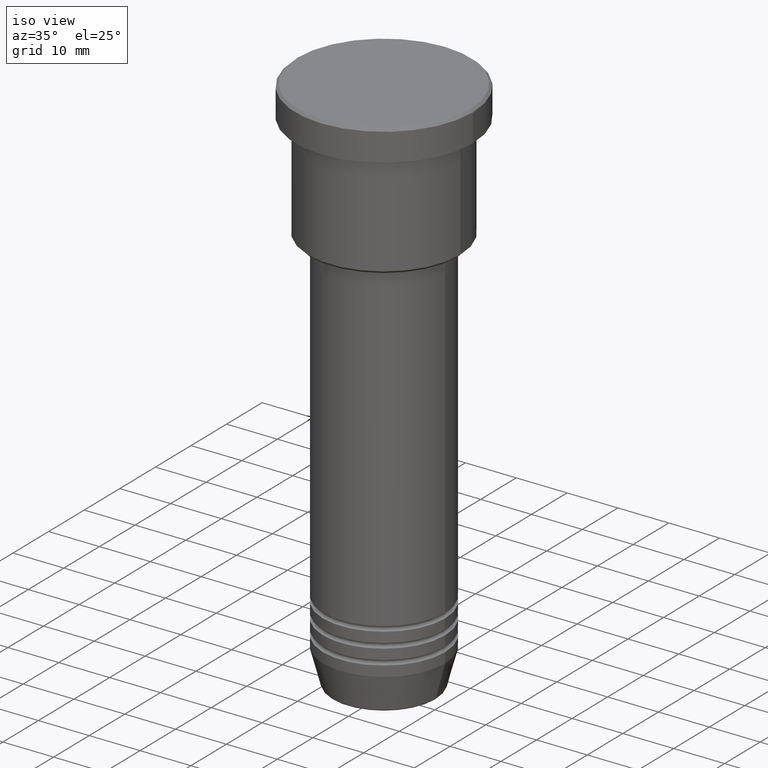
[diagram: clean part render]
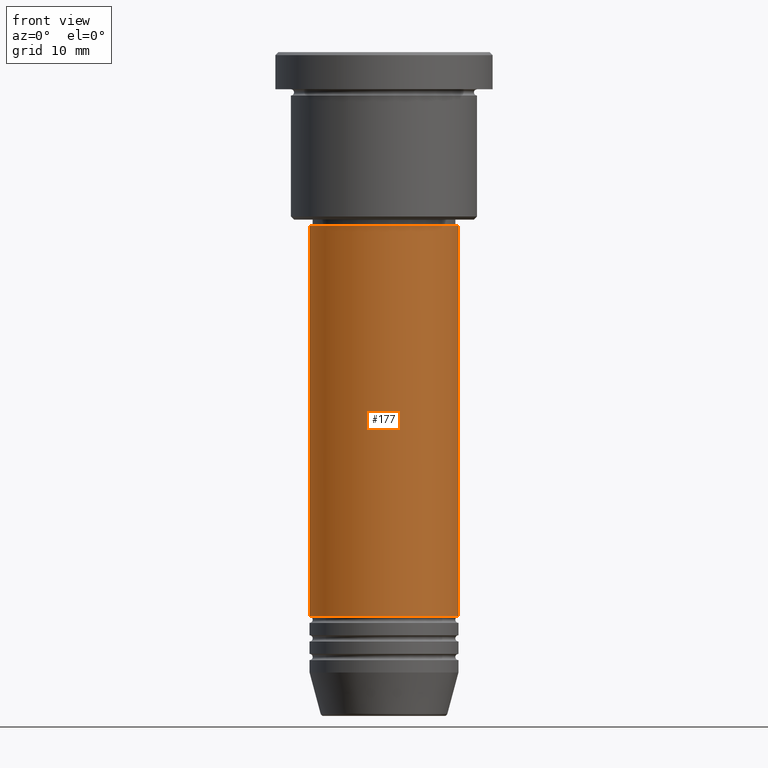
[diagram: tour spotlight — one face highlighted and labeled with its STEP entity id]
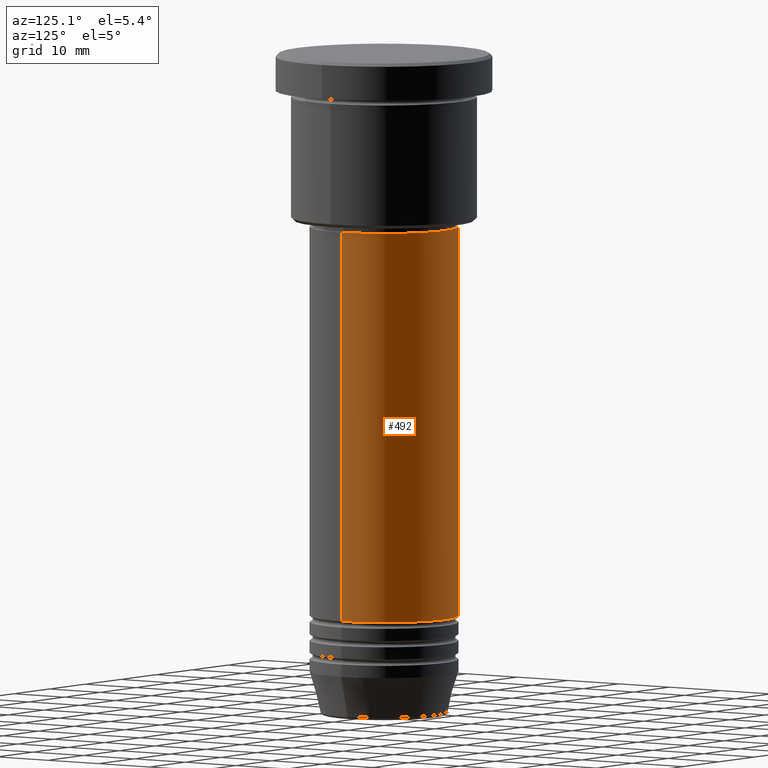
[diagram: tour spotlight — one face highlighted and labeled with its STEP entity id]
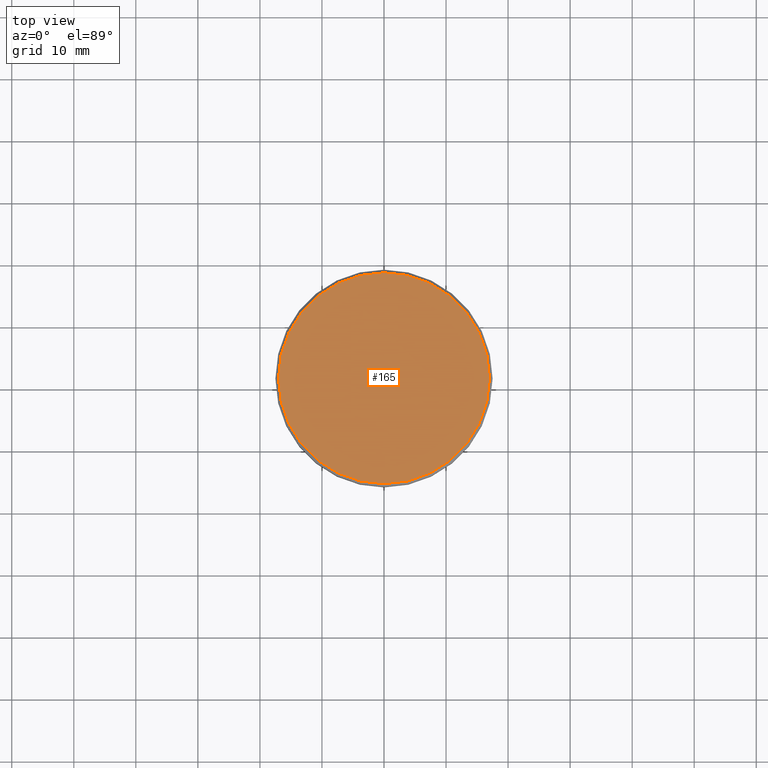
[diagram: tour spotlight — one face highlighted and labeled with its STEP entity id]
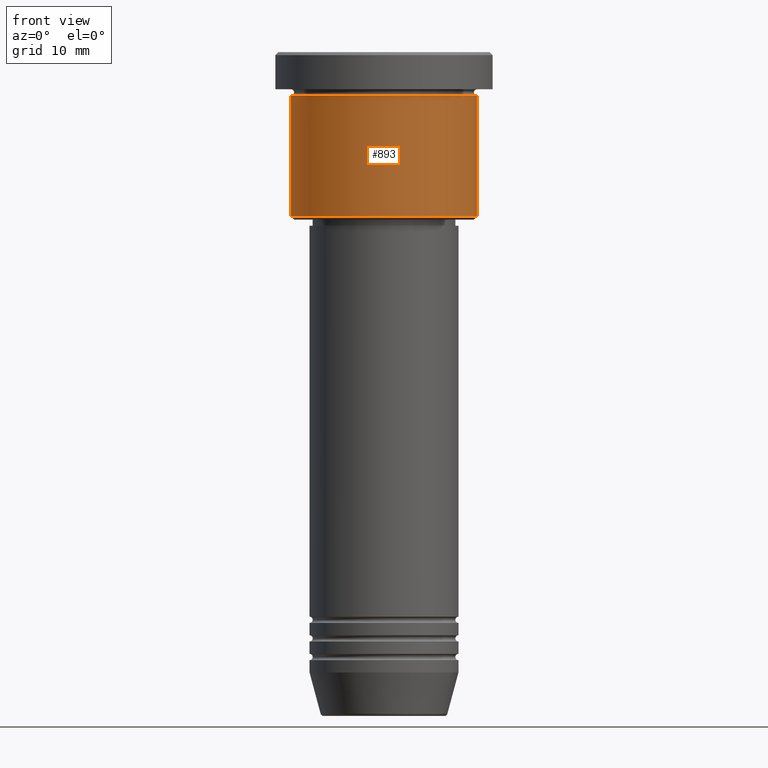
[diagram: tour spotlight — one face highlighted and labeled with its STEP entity id]
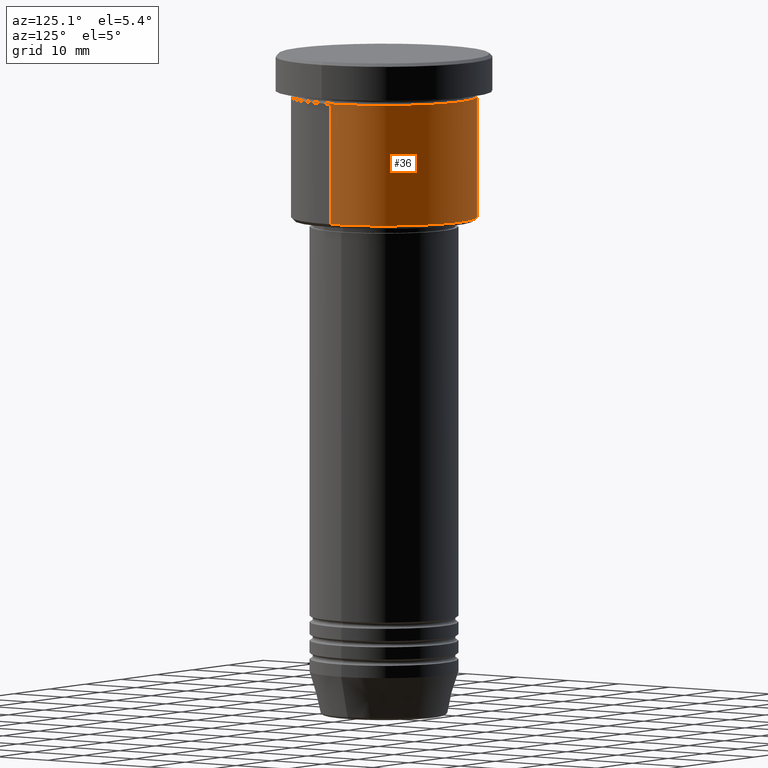
[diagram: tour spotlight — one face highlighted and labeled with its STEP entity id]
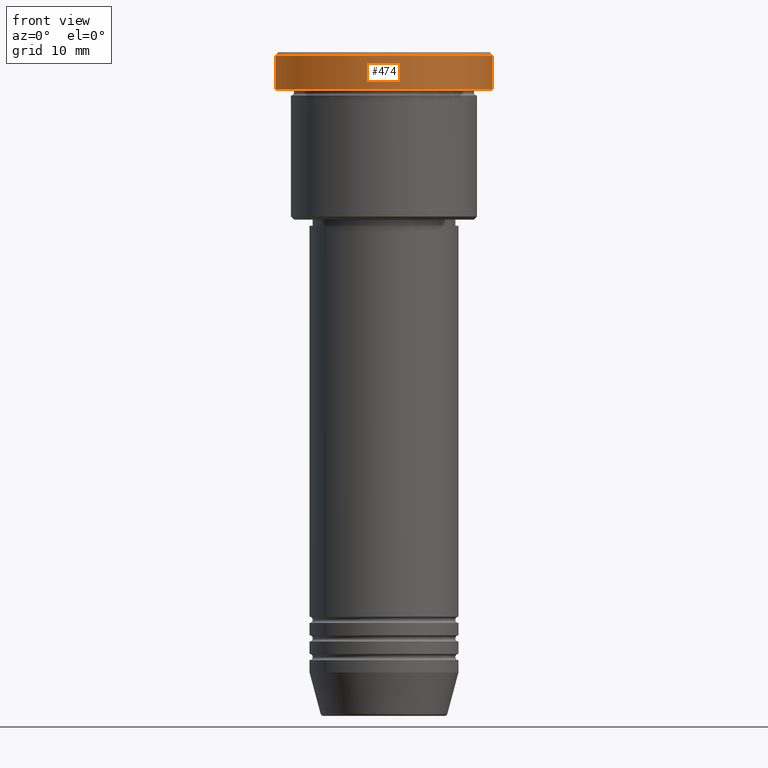
[diagram: tour spotlight — one face highlighted and labeled with its STEP entity id]
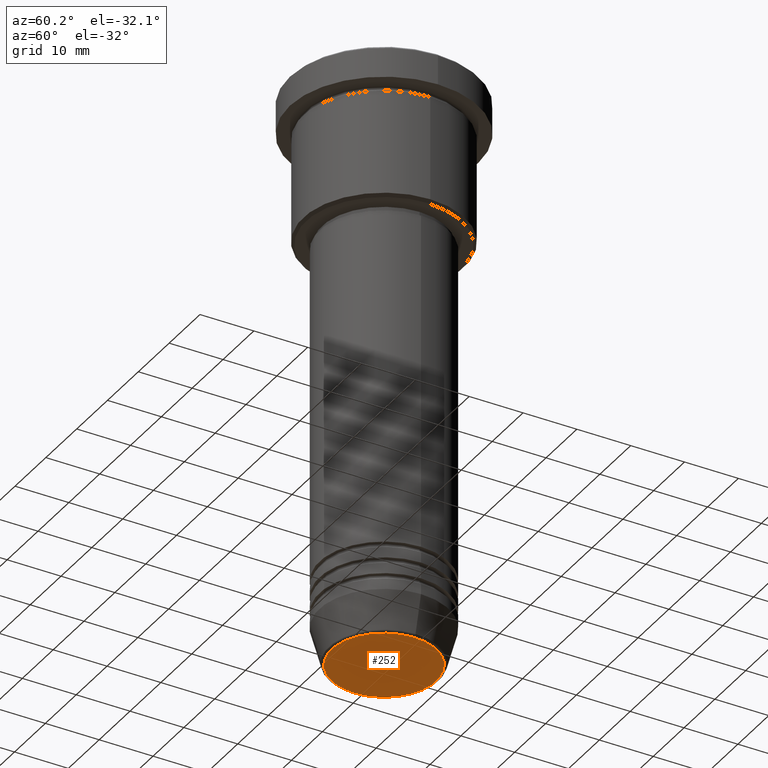
[diagram: tour spotlight — one face highlighted and labeled with its STEP entity id]
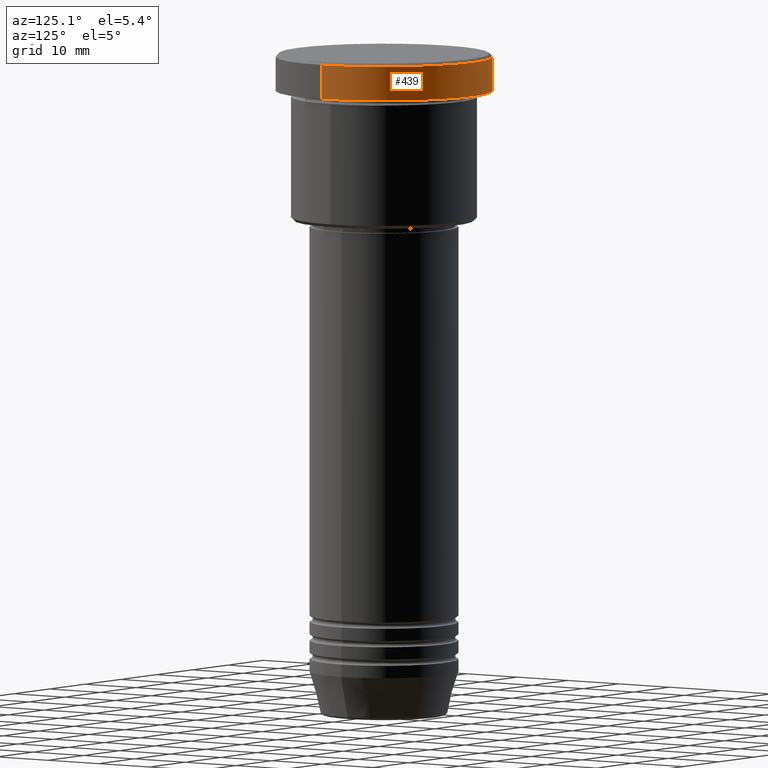
[diagram: tour spotlight — one face highlighted and labeled with its STEP entity id]
A machine part: a face-by-face anatomy tour. The part has 43 B-rep faces; the first image is the clean iso view, then the 8 largest visible faces are spotlighted one at a time (largest first), each with its STEP entity span.

Face 1 — front view, entity #177. In plain terms, the highlighted cylindrical surface (partial cylindrical patch) has radius 12 mm, axis along (-0, -0, 1).
Definition (entity closure, byte-faithful):
#21 = AXIS2_PLACEMENT_3D ( 'NONE', #513, #866, #840 ) ;
#30 = EDGE_CURVE ( 'NONE', #206, #619, #933, .T. ) ;
#34 = VERTEX_POINT ( 'NONE', #942 ) ;
#62 = EDGE_CURVE ( 'NONE', #290, #619, #374, .T. ) ;
#77 = ORIENTED_EDGE ( 'NONE', *, *, #982, .T. ) ;
#82 = CARTESIAN_POINT ( 'NONE',  ( 0.000000000000000000, 0.000000000000000000, -90.99999999999997158 ) ) ;
#91 = DIRECTION ( 'NONE',  ( -0.000000000000000000, -0.000000000000000000, 1.000000000000000000 ) ) ;
#104 = ORIENTED_EDGE ( 'NONE', *, *, #1085, .F. ) ;
#114 = DIRECTION ( 'NONE',  ( 1.000000000000000000, 0.000000000000000000, 0.000000000000000000 ) ) ;
#118 = CYLINDRICAL_SURFACE ( 'NONE', #281, 12.00000000000000000 ) ;
#168 = VECTOR ( 'NONE', #584, 1000.000000000000000 ) ;
#177 = ADVANCED_FACE ( 'NONE', ( #929 ), #118, .T. ) ;
#204 = CARTESIAN_POINT ( 'NONE',  ( 0.000000000000000000, 0.000000000000000000, 0.000000000000000000 ) ) ;
#206 = VERTEX_POINT ( 'NONE', #212 ) ;
#212 = CARTESIAN_POINT ( 'NONE',  ( 12.00000000000000000, 0.000000000000000000, -90.99999999999997158 ) ) ;
#249 = CIRCLE ( 'NONE', #357, 12.00000000000000000 ) ;
#281 = AXIS2_PLACEMENT_3D ( 'NONE', #204, #482, #114 ) ;
#290 = VERTEX_POINT ( 'NONE', #589 ) ;
#306 = LINE ( 'NONE', #828, #646 ) ;
#357 = AXIS2_PLACEMENT_3D ( 'NONE', #82, #91, #1080 ) ;
#364 = EDGE_LOOP ( 'NONE', ( #104, #77, #1095, #391 ) ) ;
#374 = CIRCLE ( 'NONE', #21, 12.00000000000000000 ) ;
#391 = ORIENTED_EDGE ( 'NONE', *, *, #62, .F. ) ;
#482 = DIRECTION ( 'NONE',  ( -0.000000000000000000, -0.000000000000000000, 1.000000000000000000 ) ) ;
#484 = DIRECTION ( 'NONE',  ( -0.000000000000000000, -0.000000000000000000, 1.000000000000000000 ) ) ;
#513 = CARTESIAN_POINT ( 'NONE',  ( 0.000000000000000000, 0.000000000000000000, -28.00000000000000355 ) ) ;
#584 = DIRECTION ( 'NONE',  ( -0.000000000000000000, -0.000000000000000000, 1.000000000000000000 ) ) ;
#589 = CARTESIAN_POINT ( 'NONE',  ( -12.00000000000000000, 1.469576158976823947E-15, -28.00000000000000355 ) ) ;
#619 = VERTEX_POINT ( 'NONE', #1094 ) ;
#646 = VECTOR ( 'NONE', #484, 1000.000000000000000 ) ;
#828 = CARTESIAN_POINT ( 'NONE',  ( -12.00000000000000000, 1.469576158976823947E-15, 0.000000000000000000 ) ) ;
#840 = DIRECTION ( 'NONE',  ( 1.000000000000000000, 0.000000000000000000, 0.000000000000000000 ) ) ;
#845 = CARTESIAN_POINT ( 'NONE',  ( 12.00000000000000000, 0.000000000000000000, 0.000000000000000000 ) ) ;
#866 = DIRECTION ( 'NONE',  ( -0.000000000000000000, -0.000000000000000000, 1.000000000000000000 ) ) ;
#929 = FACE_OUTER_BOUND ( 'NONE', #364, .T. ) ;
#933 = LINE ( 'NONE', #845, #168 ) ;
#942 = CARTESIAN_POINT ( 'NONE',  ( -12.00000000000000000, 1.469576158976823947E-15, -90.99999999999997158 ) ) ;
#982 = EDGE_CURVE ( 'NONE', #34, #206, #249, .T. ) ;
#1080 = DIRECTION ( 'NONE',  ( 1.000000000000000000, 0.000000000000000000, 0.000000000000000000 ) ) ;
#1085 = EDGE_CURVE ( 'NONE', #34, #290, #306, .T. ) ;
#1094 = CARTESIAN_POINT ( 'NONE',  ( 12.00000000000000000, 0.000000000000000000, -28.00000000000000355 ) ) ;
#1095 = ORIENTED_EDGE ( 'NONE', *, *, #30, .T. ) ;

Face 2 — auxiliary view, entity #492. In plain terms, the highlighted cylindrical surface (partial cylindrical patch) has radius 12 mm, axis along (-0, -0, 1).
Definition (entity closure, byte-faithful):
#30 = EDGE_CURVE ( 'NONE', #206, #619, #933, .T. ) ;
#34 = VERTEX_POINT ( 'NONE', #942 ) ;
#42 = AXIS2_PLACEMENT_3D ( 'NONE', #631, #878, #1087 ) ;
#58 = CARTESIAN_POINT ( 'NONE',  ( 0.000000000000000000, 0.000000000000000000, -28.00000000000000355 ) ) ;
#110 = EDGE_CURVE ( 'NONE', #206, #34, #839, .T. ) ;
#168 = VECTOR ( 'NONE', #584, 1000.000000000000000 ) ;
#181 = FACE_OUTER_BOUND ( 'NONE', #384, .T. ) ;
#206 = VERTEX_POINT ( 'NONE', #212 ) ;
#212 = CARTESIAN_POINT ( 'NONE',  ( 12.00000000000000000, 0.000000000000000000, -90.99999999999997158 ) ) ;
#276 = CYLINDRICAL_SURFACE ( 'NONE', #997, 12.00000000000000000 ) ;
#290 = VERTEX_POINT ( 'NONE', #589 ) ;
#306 = LINE ( 'NONE', #828, #646 ) ;
#317 = EDGE_CURVE ( 'NONE', #619, #290, #706, .T. ) ;
#384 = EDGE_LOOP ( 'NONE', ( #1125, #1171, #654, #505 ) ) ;
#392 = AXIS2_PLACEMENT_3D ( 'NONE', #58, #797, #429 ) ;
#429 = DIRECTION ( 'NONE',  ( 1.000000000000000000, 0.000000000000000000, 0.000000000000000000 ) ) ;
#454 = DIRECTION ( 'NONE',  ( 1.000000000000000000, 0.000000000000000000, 0.000000000000000000 ) ) ;
#484 = DIRECTION ( 'NONE',  ( -0.000000000000000000, -0.000000000000000000, 1.000000000000000000 ) ) ;
#492 = ADVANCED_FACE ( 'NONE', ( #181 ), #276, .T. ) ;
#505 = ORIENTED_EDGE ( 'NONE', *, *, #30, .F. ) ;
#584 = DIRECTION ( 'NONE',  ( -0.000000000000000000, -0.000000000000000000, 1.000000000000000000 ) ) ;
#589 = CARTESIAN_POINT ( 'NONE',  ( -12.00000000000000000, 1.469576158976823947E-15, -28.00000000000000355 ) ) ;
#619 = VERTEX_POINT ( 'NONE', #1094 ) ;
#631 = CARTESIAN_POINT ( 'NONE',  ( 0.000000000000000000, 0.000000000000000000, -90.99999999999997158 ) ) ;
#646 = VECTOR ( 'NONE', #484, 1000.000000000000000 ) ;
#654 = ORIENTED_EDGE ( 'NONE', *, *, #317, .F. ) ;
#706 = CIRCLE ( 'NONE', #392, 12.00000000000000000 ) ;
#745 = CARTESIAN_POINT ( 'NONE',  ( 0.000000000000000000, 0.000000000000000000, 0.000000000000000000 ) ) ;
#797 = DIRECTION ( 'NONE',  ( -0.000000000000000000, -0.000000000000000000, 1.000000000000000000 ) ) ;
#828 = CARTESIAN_POINT ( 'NONE',  ( -12.00000000000000000, 1.469576158976823947E-15, 0.000000000000000000 ) ) ;
#839 = CIRCLE ( 'NONE', #42, 12.00000000000000000 ) ;
#845 = CARTESIAN_POINT ( 'NONE',  ( 12.00000000000000000, 0.000000000000000000, 0.000000000000000000 ) ) ;
#878 = DIRECTION ( 'NONE',  ( -0.000000000000000000, -0.000000000000000000, 1.000000000000000000 ) ) ;
#933 = LINE ( 'NONE', #845, #168 ) ;
#942 = CARTESIAN_POINT ( 'NONE',  ( -12.00000000000000000, 1.469576158976823947E-15, -90.99999999999997158 ) ) ;
#995 = DIRECTION ( 'NONE',  ( -0.000000000000000000, -0.000000000000000000, 1.000000000000000000 ) ) ;
#997 = AXIS2_PLACEMENT_3D ( 'NONE', #745, #995, #454 ) ;
#1085 = EDGE_CURVE ( 'NONE', #34, #290, #306, .T. ) ;
#1087 = DIRECTION ( 'NONE',  ( 1.000000000000000000, 0.000000000000000000, 0.000000000000000000 ) ) ;
#1094 = CARTESIAN_POINT ( 'NONE',  ( 12.00000000000000000, 0.000000000000000000, -28.00000000000000355 ) ) ;
#1125 = ORIENTED_EDGE ( 'NONE', *, *, #110, .T. ) ;
#1171 = ORIENTED_EDGE ( 'NONE', *, *, #1085, .T. ) ;

Face 3 — top view, entity #165. In plain terms, the highlighted planar face has unit normal (0, -0, 1).
Definition (entity closure, byte-faithful):
#8 = ORIENTED_EDGE ( 'NONE', *, *, #350, .T. ) ;
#70 = CARTESIAN_POINT ( 'NONE',  ( 0.000000000000000000, 0.000000000000000000, 0.000000000000000000 ) ) ;
#143 = EDGE_CURVE ( 'NONE', #495, #423, #261, .T. ) ;
#165 = ADVANCED_FACE ( 'NONE', ( #676 ), #689, .T. ) ;
#224 = ORIENTED_EDGE ( 'NONE', *, *, #143, .T. ) ;
#234 = CARTESIAN_POINT ( 'NONE',  ( 0.000000000000000000, 0.000000000000000000, 0.000000000000000000 ) ) ;
#245 = DIRECTION ( 'NONE',  ( 1.000000000000000000, 0.000000000000000000, 0.000000000000000000 ) ) ;
#261 = CIRCLE ( 'NONE', #527, 17.00000000000000000 ) ;
#274 = DIRECTION ( 'NONE',  ( 0.000000000000000000, -0.000000000000000000, 1.000000000000000000 ) ) ;
#350 = EDGE_CURVE ( 'NONE', #423, #495, #1137, .T. ) ;
#359 = EDGE_LOOP ( 'NONE', ( #224, #8 ) ) ;
#366 = DIRECTION ( 'NONE',  ( 1.000000000000000000, 0.000000000000000000, 0.000000000000000000 ) ) ;
#423 = VERTEX_POINT ( 'NONE', #956 ) ;
#495 = VERTEX_POINT ( 'NONE', #1173 ) ;
#499 = DIRECTION ( 'NONE',  ( -0.000000000000000000, -0.000000000000000000, 1.000000000000000000 ) ) ;
#527 = AXIS2_PLACEMENT_3D ( 'NONE', #234, #499, #854 ) ;
#660 = CARTESIAN_POINT ( 'NONE',  ( 0.000000000000000000, 0.000000000000000000, 0.000000000000000000 ) ) ;
#676 = FACE_OUTER_BOUND ( 'NONE', #359, .T. ) ;
#689 = PLANE ( 'NONE',  #718 ) ;
#695 = DIRECTION ( 'NONE',  ( -0.000000000000000000, -0.000000000000000000, 1.000000000000000000 ) ) ;
#718 = AXIS2_PLACEMENT_3D ( 'NONE', #660, #274, #366 ) ;
#854 = DIRECTION ( 'NONE',  ( 1.000000000000000000, 0.000000000000000000, 0.000000000000000000 ) ) ;
#938 = AXIS2_PLACEMENT_3D ( 'NONE', #70, #695, #245 ) ;
#956 = CARTESIAN_POINT ( 'NONE',  ( 17.00000000000000000, 2.112515728529184067E-15, 0.000000000000000000 ) ) ;
#1137 = CIRCLE ( 'NONE', #938, 17.00000000000000000 ) ;
#1173 = CARTESIAN_POINT ( 'NONE',  ( -17.00000000000000000, 0.000000000000000000, 0.000000000000000000 ) ) ;

Face 4 — front view, entity #893. In plain terms, the highlighted cylindrical surface (partial cylindrical patch) has radius 15 mm, axis along (-0, -0, 1).
Definition (entity closure, byte-faithful):
#48 = CARTESIAN_POINT ( 'NONE',  ( 0.000000000000000000, 0.000000000000000000, 0.000000000000000000 ) ) ;
#49 = DIRECTION ( 'NONE',  ( -0.000000000000000000, -0.000000000000000000, 1.000000000000000000 ) ) ;
#115 = LINE ( 'NONE', #847, #247 ) ;
#139 = CARTESIAN_POINT ( 'NONE',  ( 0.000000000000000000, 0.000000000000000000, -26.49999999999997158 ) ) ;
#161 = DIRECTION ( 'NONE',  ( 1.000000000000000000, 0.000000000000000000, 0.000000000000000000 ) ) ;
#169 = AXIS2_PLACEMENT_3D ( 'NONE', #253, #970, #161 ) ;
#193 = VERTEX_POINT ( 'NONE', #1123 ) ;
#247 = VECTOR ( 'NONE', #1110, 1000.000000000000000 ) ;
#250 = ORIENTED_EDGE ( 'NONE', *, *, #451, .T. ) ;
#253 = CARTESIAN_POINT ( 'NONE',  ( 0.000000000000000000, 0.000000000000000000, -6.999999999999995559 ) ) ;
#292 = ORIENTED_EDGE ( 'NONE', *, *, #728, .T. ) ;
#300 = EDGE_LOOP ( 'NONE', ( #607, #250, #292, #440 ) ) ;
#385 = DIRECTION ( 'NONE',  ( -0.000000000000000000, -0.000000000000000000, 1.000000000000000000 ) ) ;
#431 = CIRCLE ( 'NONE', #920, 15.00000000000000000 ) ;
#440 = ORIENTED_EDGE ( 'NONE', *, *, #463, .F. ) ;
#451 = EDGE_CURVE ( 'NONE', #993, #636, #431, .T. ) ;
#463 = EDGE_CURVE ( 'NONE', #1090, #193, #841, .T. ) ;
#557 = CARTESIAN_POINT ( 'NONE',  ( 15.00000000000000000, 0.000000000000000000, -26.49999999999997158 ) ) ;
#602 = CYLINDRICAL_SURFACE ( 'NONE', #740, 15.00000000000000000 ) ;
#607 = ORIENTED_EDGE ( 'NONE', *, *, #648, .F. ) ;
#636 = VERTEX_POINT ( 'NONE', #557 ) ;
#648 = EDGE_CURVE ( 'NONE', #993, #1090, #115, .T. ) ;
#728 = EDGE_CURVE ( 'NONE', #636, #193, #1113, .T. ) ;
#740 = AXIS2_PLACEMENT_3D ( 'NONE', #48, #962, #1146 ) ;
#830 = CARTESIAN_POINT ( 'NONE',  ( 15.00000000000000000, 0.000000000000000000, 0.000000000000000000 ) ) ;
#841 = CIRCLE ( 'NONE', #169, 15.00000000000000000 ) ;
#843 = CARTESIAN_POINT ( 'NONE',  ( -15.00000000000000000, 1.836970198721029589E-15, -6.999999999999995559 ) ) ;
#847 = CARTESIAN_POINT ( 'NONE',  ( -15.00000000000000000, 1.836970198721029589E-15, 0.000000000000000000 ) ) ;
#871 = FACE_OUTER_BOUND ( 'NONE', #300, .T. ) ;
#893 = ADVANCED_FACE ( 'NONE', ( #871 ), #602, .T. ) ;
#920 = AXIS2_PLACEMENT_3D ( 'NONE', #139, #49, #1152 ) ;
#962 = DIRECTION ( 'NONE',  ( -0.000000000000000000, -0.000000000000000000, 1.000000000000000000 ) ) ;
#970 = DIRECTION ( 'NONE',  ( -0.000000000000000000, -0.000000000000000000, 1.000000000000000000 ) ) ;
#985 = CARTESIAN_POINT ( 'NONE',  ( -15.00000000000000000, 1.836970198721029589E-15, -26.49999999999997158 ) ) ;
#993 = VERTEX_POINT ( 'NONE', #985 ) ;
#998 = VECTOR ( 'NONE', #385, 1000.000000000000000 ) ;
#1090 = VERTEX_POINT ( 'NONE', #843 ) ;
#1110 = DIRECTION ( 'NONE',  ( -0.000000000000000000, -0.000000000000000000, 1.000000000000000000 ) ) ;
#1113 = LINE ( 'NONE', #830, #998 ) ;
#1123 = CARTESIAN_POINT ( 'NONE',  ( 15.00000000000000000, 0.000000000000000000, -6.999999999999995559 ) ) ;
#1146 = DIRECTION ( 'NONE',  ( 1.000000000000000000, 0.000000000000000000, 0.000000000000000000 ) ) ;
#1152 = DIRECTION ( 'NONE',  ( -1.000000000000000000, 0.000000000000000000, 0.000000000000000000 ) ) ;

Face 5 — auxiliary view, entity #36. In plain terms, the highlighted cylindrical surface (partial cylindrical patch) has radius 15 mm, axis along (-0, -0, 1).
Definition (entity closure, byte-faithful):
#36 = ADVANCED_FACE ( 'NONE', ( #136 ), #749, .T. ) ;
#115 = LINE ( 'NONE', #847, #247 ) ;
#117 = ORIENTED_EDGE ( 'NONE', *, *, #696, .T. ) ;
#122 = ORIENTED_EDGE ( 'NONE', *, *, #1132, .F. ) ;
#136 = FACE_OUTER_BOUND ( 'NONE', #346, .T. ) ;
#193 = VERTEX_POINT ( 'NONE', #1123 ) ;
#222 = DIRECTION ( 'NONE',  ( -1.000000000000000000, 0.000000000000000000, 0.000000000000000000 ) ) ;
#231 = CIRCLE ( 'NONE', #941, 15.00000000000000000 ) ;
#247 = VECTOR ( 'NONE', #1110, 1000.000000000000000 ) ;
#294 = CARTESIAN_POINT ( 'NONE',  ( 0.000000000000000000, 0.000000000000000000, -26.49999999999997158 ) ) ;
#346 = EDGE_LOOP ( 'NONE', ( #117, #1009, #122, #1112 ) ) ;
#385 = DIRECTION ( 'NONE',  ( -0.000000000000000000, -0.000000000000000000, 1.000000000000000000 ) ) ;
#530 = CIRCLE ( 'NONE', #943, 15.00000000000000000 ) ;
#547 = AXIS2_PLACEMENT_3D ( 'NONE', #570, #924, #755 ) ;
#557 = CARTESIAN_POINT ( 'NONE',  ( 15.00000000000000000, 0.000000000000000000, -26.49999999999997158 ) ) ;
#570 = CARTESIAN_POINT ( 'NONE',  ( 0.000000000000000000, 0.000000000000000000, 0.000000000000000000 ) ) ;
#578 = DIRECTION ( 'NONE',  ( -0.000000000000000000, -0.000000000000000000, 1.000000000000000000 ) ) ;
#636 = VERTEX_POINT ( 'NONE', #557 ) ;
#648 = EDGE_CURVE ( 'NONE', #993, #1090, #115, .T. ) ;
#696 = EDGE_CURVE ( 'NONE', #636, #993, #231, .T. ) ;
#728 = EDGE_CURVE ( 'NONE', #636, #193, #1113, .T. ) ;
#749 = CYLINDRICAL_SURFACE ( 'NONE', #547, 15.00000000000000000 ) ;
#755 = DIRECTION ( 'NONE',  ( 1.000000000000000000, 0.000000000000000000, 0.000000000000000000 ) ) ;
#830 = CARTESIAN_POINT ( 'NONE',  ( 15.00000000000000000, 0.000000000000000000, 0.000000000000000000 ) ) ;
#834 = CARTESIAN_POINT ( 'NONE',  ( 0.000000000000000000, 0.000000000000000000, -6.999999999999995559 ) ) ;
#843 = CARTESIAN_POINT ( 'NONE',  ( -15.00000000000000000, 1.836970198721029589E-15, -6.999999999999995559 ) ) ;
#847 = CARTESIAN_POINT ( 'NONE',  ( -15.00000000000000000, 1.836970198721029589E-15, 0.000000000000000000 ) ) ;
#924 = DIRECTION ( 'NONE',  ( -0.000000000000000000, -0.000000000000000000, 1.000000000000000000 ) ) ;
#932 = DIRECTION ( 'NONE',  ( 1.000000000000000000, 0.000000000000000000, 0.000000000000000000 ) ) ;
#941 = AXIS2_PLACEMENT_3D ( 'NONE', #294, #1010, #222 ) ;
#943 = AXIS2_PLACEMENT_3D ( 'NONE', #834, #578, #932 ) ;
#985 = CARTESIAN_POINT ( 'NONE',  ( -15.00000000000000000, 1.836970198721029589E-15, -26.49999999999997158 ) ) ;
#993 = VERTEX_POINT ( 'NONE', #985 ) ;
#998 = VECTOR ( 'NONE', #385, 1000.000000000000000 ) ;
#1009 = ORIENTED_EDGE ( 'NONE', *, *, #648, .T. ) ;
#1010 = DIRECTION ( 'NONE',  ( -0.000000000000000000, -0.000000000000000000, 1.000000000000000000 ) ) ;
#1090 = VERTEX_POINT ( 'NONE', #843 ) ;
#1110 = DIRECTION ( 'NONE',  ( -0.000000000000000000, -0.000000000000000000, 1.000000000000000000 ) ) ;
#1112 = ORIENTED_EDGE ( 'NONE', *, *, #728, .F. ) ;
#1113 = LINE ( 'NONE', #830, #998 ) ;
#1123 = CARTESIAN_POINT ( 'NONE',  ( 15.00000000000000000, 0.000000000000000000, -6.999999999999995559 ) ) ;
#1132 = EDGE_CURVE ( 'NONE', #193, #1090, #530, .T. ) ;

Face 6 — front view, entity #474. In plain terms, the highlighted cylindrical surface (partial cylindrical patch) has radius 17.5 mm, axis along (-0, -0, 1).
Definition (entity closure, byte-faithful):
#20 = CARTESIAN_POINT ( 'NONE',  ( 17.50000000000000000, 0.000000000000000000, 0.000000000000000000 ) ) ;
#22 = AXIS2_PLACEMENT_3D ( 'NONE', #517, #437, #873 ) ;
#26 = ORIENTED_EDGE ( 'NONE', *, *, #591, .T. ) ;
#194 = CARTESIAN_POINT ( 'NONE',  ( -17.50000000000000000, 2.143131898507868248E-15, 0.000000000000000000 ) ) ;
#375 = AXIS2_PLACEMENT_3D ( 'NONE', #544, #450, #813 ) ;
#383 = EDGE_CURVE ( 'NONE', #1076, #898, #644, .T. ) ;
#416 = VECTOR ( 'NONE', #1073, 1000.000000000000000 ) ;
#437 = DIRECTION ( 'NONE',  ( 0.000000000000000000, 0.000000000000000000, -1.000000000000000000 ) ) ;
#445 = CIRCLE ( 'NONE', #375, 17.50000000000000000 ) ;
#450 = DIRECTION ( 'NONE',  ( -0.000000000000000000, -0.000000000000000000, 1.000000000000000000 ) ) ;
#458 = VERTEX_POINT ( 'NONE', #1063 ) ;
#474 = ADVANCED_FACE ( 'NONE', ( #503 ), #877, .T. ) ;
#503 = FACE_OUTER_BOUND ( 'NONE', #526, .T. ) ;
#511 = VECTOR ( 'NONE', #765, 1000.000000000000000 ) ;
#517 = CARTESIAN_POINT ( 'NONE',  ( 0.000000000000000000, 0.000000000000000000, -0.5000000000000142109 ) ) ;
#526 = EDGE_LOOP ( 'NONE', ( #1149, #26, #678, #788 ) ) ;
#544 = CARTESIAN_POINT ( 'NONE',  ( 0.000000000000000000, 0.000000000000000000, -5.999999999999995559 ) ) ;
#575 = CARTESIAN_POINT ( 'NONE',  ( 17.50000000000000000, 0.000000000000000000, -0.5000000000000142109 ) ) ;
#591 = EDGE_CURVE ( 'NONE', #458, #803, #445, .T. ) ;
#617 = CARTESIAN_POINT ( 'NONE',  ( 17.50000000000000000, 0.000000000000000000, -5.999999999999995559 ) ) ;
#642 = DIRECTION ( 'NONE',  ( -0.000000000000000000, -0.000000000000000000, 1.000000000000000000 ) ) ;
#644 = CIRCLE ( 'NONE', #22, 17.50000000000000000 ) ;
#678 = ORIENTED_EDGE ( 'NONE', *, *, #790, .T. ) ;
#727 = DIRECTION ( 'NONE',  ( 1.000000000000000000, 0.000000000000000000, 0.000000000000000000 ) ) ;
#730 = LINE ( 'NONE', #194, #416 ) ;
#765 = DIRECTION ( 'NONE',  ( -0.000000000000000000, -0.000000000000000000, 1.000000000000000000 ) ) ;
#788 = ORIENTED_EDGE ( 'NONE', *, *, #383, .T. ) ;
#790 = EDGE_CURVE ( 'NONE', #803, #1076, #836, .T. ) ;
#803 = VERTEX_POINT ( 'NONE', #617 ) ;
#813 = DIRECTION ( 'NONE',  ( 1.000000000000000000, 0.000000000000000000, 0.000000000000000000 ) ) ;
#836 = LINE ( 'NONE', #20, #511 ) ;
#873 = DIRECTION ( 'NONE',  ( 1.000000000000000000, 0.000000000000000000, 0.000000000000000000 ) ) ;
#877 = CYLINDRICAL_SURFACE ( 'NONE', #1101, 17.50000000000000000 ) ;
#898 = VERTEX_POINT ( 'NONE', #1141 ) ;
#900 = CARTESIAN_POINT ( 'NONE',  ( 0.000000000000000000, 0.000000000000000000, 0.000000000000000000 ) ) ;
#964 = EDGE_CURVE ( 'NONE', #458, #898, #730, .T. ) ;
#1063 = CARTESIAN_POINT ( 'NONE',  ( -17.50000000000000000, 2.143131898507868248E-15, -5.999999999999995559 ) ) ;
#1073 = DIRECTION ( 'NONE',  ( -0.000000000000000000, -0.000000000000000000, 1.000000000000000000 ) ) ;
#1076 = VERTEX_POINT ( 'NONE', #575 ) ;
#1101 = AXIS2_PLACEMENT_3D ( 'NONE', #900, #642, #727 ) ;
#1141 = CARTESIAN_POINT ( 'NONE',  ( -17.50000000000000000, 2.143131898507868248E-15, -0.5000000000000142109 ) ) ;
#1149 = ORIENTED_EDGE ( 'NONE', *, *, #964, .F. ) ;

Face 7 — auxiliary view, entity #252. In plain terms, the highlighted planar face has unit normal (0, -0, 1).
Definition (entity closure, byte-faithful):
#3 = AXIS2_PLACEMENT_3D ( 'NONE', #716, #257, #622 ) ;
#14 = FACE_OUTER_BOUND ( 'NONE', #1079, .T. ) ;
#38 = CARTESIAN_POINT ( 'NONE',  ( 9.740692158992658278, 0.000000000000000000, -107.0000000000000000 ) ) ;
#106 = DIRECTION ( 'NONE',  ( 0.000000000000000000, -0.000000000000000000, 1.000000000000000000 ) ) ;
#151 = VERTEX_POINT ( 'NONE', #38 ) ;
#219 = DIRECTION ( 'NONE',  ( 0.000000000000000000, 0.000000000000000000, -1.000000000000000000 ) ) ;
#227 = CARTESIAN_POINT ( 'NONE',  ( -9.740692158992658278, 1.222463696683474604E-15, -107.0000000000000000 ) ) ;
#252 = ADVANCED_FACE ( 'NONE', ( #14 ), #562, .F. ) ;
#257 = DIRECTION ( 'NONE',  ( 0.000000000000000000, 0.000000000000000000, -1.000000000000000000 ) ) ;
#283 = CIRCLE ( 'NONE', #3, 9.740692158992658278 ) ;
#285 = AXIS2_PLACEMENT_3D ( 'NONE', #667, #219, #930 ) ;
#406 = EDGE_CURVE ( 'NONE', #151, #649, #283, .T. ) ;
#468 = CIRCLE ( 'NONE', #285, 9.740692158992658278 ) ;
#562 = PLANE ( 'NONE',  #737 ) ;
#622 = DIRECTION ( 'NONE',  ( 1.000000000000000000, 0.000000000000000000, 0.000000000000000000 ) ) ;
#649 = VERTEX_POINT ( 'NONE', #227 ) ;
#667 = CARTESIAN_POINT ( 'NONE',  ( 0.000000000000000000, 0.000000000000000000, -107.0000000000000000 ) ) ;
#716 = CARTESIAN_POINT ( 'NONE',  ( 0.000000000000000000, 0.000000000000000000, -107.0000000000000000 ) ) ;
#737 = AXIS2_PLACEMENT_3D ( 'NONE', #935, #106, #751 ) ;
#751 = DIRECTION ( 'NONE',  ( 1.000000000000000000, 0.000000000000000000, 0.000000000000000000 ) ) ;
#782 = EDGE_CURVE ( 'NONE', #649, #151, #468, .T. ) ;
#915 = ORIENTED_EDGE ( 'NONE', *, *, #406, .T. ) ;
#930 = DIRECTION ( 'NONE',  ( 1.000000000000000000, 0.000000000000000000, 0.000000000000000000 ) ) ;
#935 = CARTESIAN_POINT ( 'NONE',  ( 0.000000000000000000, 0.000000000000000000, -107.0000000000000000 ) ) ;
#960 = ORIENTED_EDGE ( 'NONE', *, *, #782, .T. ) ;
#1079 = EDGE_LOOP ( 'NONE', ( #915, #960 ) ) ;

Face 8 — auxiliary view, entity #439. In plain terms, the highlighted cylindrical surface (partial cylindrical patch) has radius 17.5 mm, axis along (-0, -0, 1).
Definition (entity closure, byte-faithful):
#20 = CARTESIAN_POINT ( 'NONE',  ( 17.50000000000000000, 0.000000000000000000, 0.000000000000000000 ) ) ;
#28 = ORIENTED_EDGE ( 'NONE', *, *, #1003, .T. ) ;
#56 = DIRECTION ( 'NONE',  ( -0.000000000000000000, -0.000000000000000000, 1.000000000000000000 ) ) ;
#194 = CARTESIAN_POINT ( 'NONE',  ( -17.50000000000000000, 2.143131898507868248E-15, 0.000000000000000000 ) ) ;
#265 = DIRECTION ( 'NONE',  ( 0.000000000000000000, 0.000000000000000000, -1.000000000000000000 ) ) ;
#277 = ORIENTED_EDGE ( 'NONE', *, *, #790, .F. ) ;
#345 = DIRECTION ( 'NONE',  ( 1.000000000000000000, 0.000000000000000000, 0.000000000000000000 ) ) ;
#356 = CIRCLE ( 'NONE', #921, 17.50000000000000000 ) ;
#416 = VECTOR ( 'NONE', #1073, 1000.000000000000000 ) ;
#439 = ADVANCED_FACE ( 'NONE', ( #510 ), #522, .T. ) ;
#458 = VERTEX_POINT ( 'NONE', #1063 ) ;
#510 = FACE_OUTER_BOUND ( 'NONE', #1108, .T. ) ;
#511 = VECTOR ( 'NONE', #765, 1000.000000000000000 ) ;
#522 = CYLINDRICAL_SURFACE ( 'NONE', #778, 17.50000000000000000 ) ;
#575 = CARTESIAN_POINT ( 'NONE',  ( 17.50000000000000000, 0.000000000000000000, -0.5000000000000142109 ) ) ;
#608 = DIRECTION ( 'NONE',  ( 1.000000000000000000, 0.000000000000000000, 0.000000000000000000 ) ) ;
#617 = CARTESIAN_POINT ( 'NONE',  ( 17.50000000000000000, 0.000000000000000000, -5.999999999999995559 ) ) ;
#730 = LINE ( 'NONE', #194, #416 ) ;
#765 = DIRECTION ( 'NONE',  ( -0.000000000000000000, -0.000000000000000000, 1.000000000000000000 ) ) ;
#778 = AXIS2_PLACEMENT_3D ( 'NONE', #1162, #1068, #345 ) ;
#790 = EDGE_CURVE ( 'NONE', #803, #1076, #836, .T. ) ;
#803 = VERTEX_POINT ( 'NONE', #617 ) ;
#836 = LINE ( 'NONE', #20, #511 ) ;
#838 = EDGE_CURVE ( 'NONE', #803, #458, #356, .T. ) ;
#849 = ORIENTED_EDGE ( 'NONE', *, *, #964, .T. ) ;
#869 = ORIENTED_EDGE ( 'NONE', *, *, #838, .T. ) ;
#898 = VERTEX_POINT ( 'NONE', #1141 ) ;
#921 = AXIS2_PLACEMENT_3D ( 'NONE', #968, #56, #608 ) ;
#964 = EDGE_CURVE ( 'NONE', #458, #898, #730, .T. ) ;
#968 = CARTESIAN_POINT ( 'NONE',  ( 0.000000000000000000, 0.000000000000000000, -5.999999999999995559 ) ) ;
#1003 = EDGE_CURVE ( 'NONE', #898, #1076, #1103, .T. ) ;
#1039 = AXIS2_PLACEMENT_3D ( 'NONE', #1175, #265, #1096 ) ;
#1063 = CARTESIAN_POINT ( 'NONE',  ( -17.50000000000000000, 2.143131898507868248E-15, -5.999999999999995559 ) ) ;
#1068 = DIRECTION ( 'NONE',  ( -0.000000000000000000, -0.000000000000000000, 1.000000000000000000 ) ) ;
#1073 = DIRECTION ( 'NONE',  ( -0.000000000000000000, -0.000000000000000000, 1.000000000000000000 ) ) ;
#1076 = VERTEX_POINT ( 'NONE', #575 ) ;
#1096 = DIRECTION ( 'NONE',  ( 1.000000000000000000, 0.000000000000000000, 0.000000000000000000 ) ) ;
#1103 = CIRCLE ( 'NONE', #1039, 17.50000000000000000 ) ;
#1108 = EDGE_LOOP ( 'NONE', ( #869, #849, #28, #277 ) ) ;
#1141 = CARTESIAN_POINT ( 'NONE',  ( -17.50000000000000000, 2.143131898507868248E-15, -0.5000000000000142109 ) ) ;
#1162 = CARTESIAN_POINT ( 'NONE',  ( 0.000000000000000000, 0.000000000000000000, 0.000000000000000000 ) ) ;
#1175 = CARTESIAN_POINT ( 'NONE',  ( 0.000000000000000000, 0.000000000000000000, -0.5000000000000142109 ) ) ;